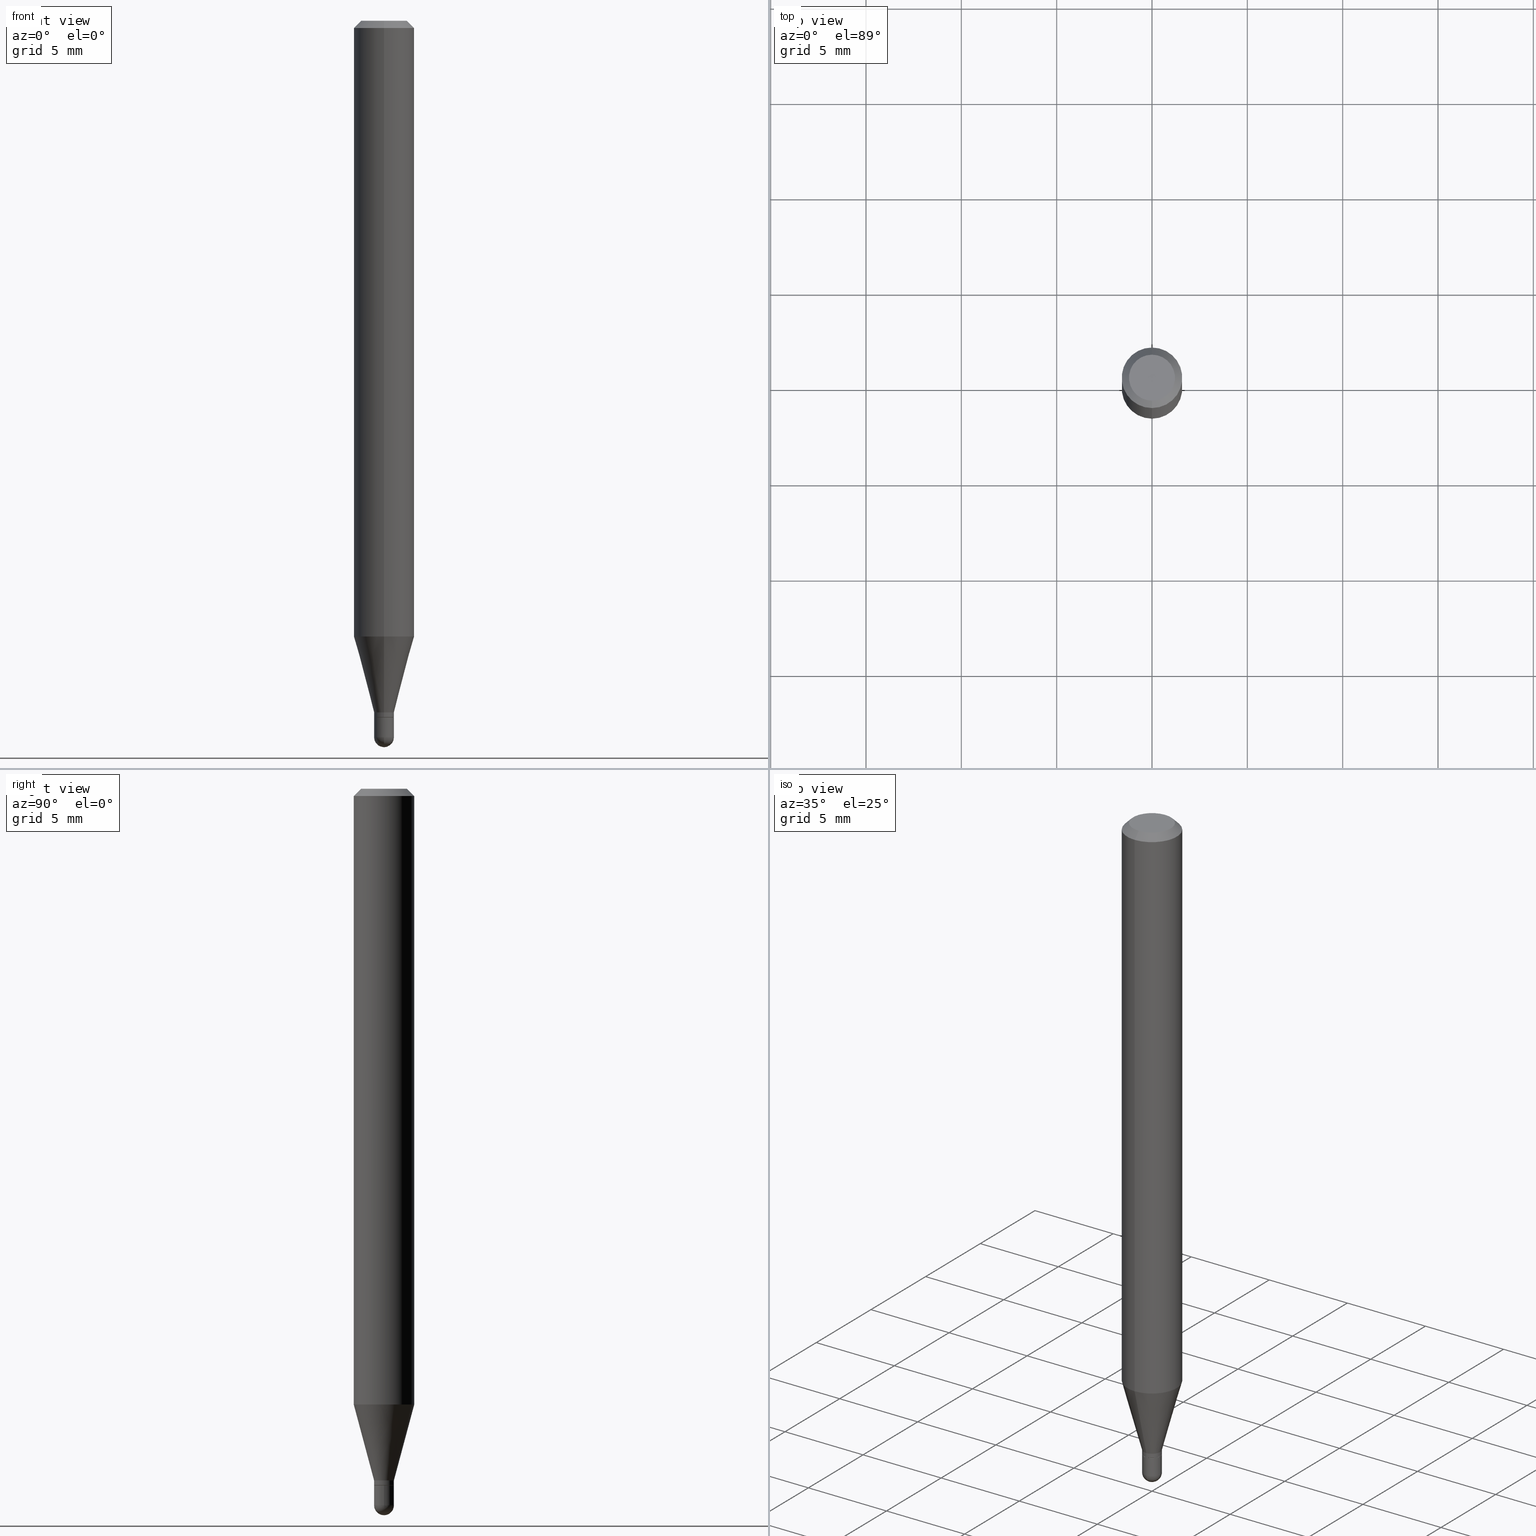
[diagram: canonical four-view strip — front | top / right | iso, engineering-drawing reading convention]
A machine part, canonical four-view strip (front | top / right | iso — engineering-drawing reading convention). The complete STEP part file that produces these views, byte-faithful:
ISO-10303-21;
HEADER;
FILE_DESCRIPTION (( 'STEP AP203' ),
    '1' );
FILE_NAME ('02538.STEP',
    '2024-03-07T20:18:48',
    ( '' ),
    ( '' ),
    'SwSTEP 2.0',
    'SolidWorks 2023',
    '' );
FILE_SCHEMA (( 'CONFIG_CONTROL_DESIGN' ));
ENDSEC;

DATA;
#1 = CONICAL_SURFACE ( 'NONE', #314, 0.02049999999999994188, 0.2617993877991504625 ) ;
#2 = LINE ( 'NONE', #393, #85 ) ;
#3 = CARTESIAN_POINT ( 'NONE',  ( 3.491895928503127378E-29, -4.986169775435812878E-15, -1.428000000000000380 ) ) ;
#4 = FACE_OUTER_BOUND ( 'NONE', #299, .T. ) ;
#5 = DIRECTION ( 'NONE',  ( -2.445305272061013346E-29, 3.491715529016674512E-15, 1.000000000000000000 ) ) ;
#6 = APPROVAL_ROLE ( '' ) ;
#7 = ORIENTED_EDGE ( 'NONE', *, *, #81, .T. ) ;
#8 = CC_DESIGN_PERSON_AND_ORGANIZATION_ASSIGNMENT ( #408, #58, ( #465 ) ) ;
#9 = COORDINATED_UNIVERSAL_TIME_OFFSET ( 5, 0, .BEHIND. ) ;
#10 = DIRECTION ( 'NONE',  ( -2.445468806185136597E-29, 3.491481338843145583E-15, 1.000000000000000000 ) ) ;
#11 = EDGE_CURVE ( 'NONE', #254, #180, #80, .T. ) ;
#12 = EDGE_LOOP ( 'NONE', ( #67, #322, #216, #130 ) ) ;
#13 = CARTESIAN_POINT ( 'NONE',  ( -1.396592535536901609E-16, -0.02000000000000502071, -1.438000000000000167 ) ) ;
#14 = ADVANCED_FACE ( 'NONE', ( #293 ), #141, .T. ) ;
#15 = VERTEX_POINT ( 'NONE', #297 ) ;
#16 = CARTESIAN_POINT ( 'NONE',  ( 8.023922595941391550E-45, -1.145756951166352322E-30, -3.281358236789170808E-16 ) ) ;
#17 = CYLINDRICAL_SURFACE ( 'NONE', #261, 0.02049999999999999739 ) ;
#18 = EDGE_LOOP ( 'NONE', ( #56, #496, #86, #82 ) ) ;
#19 = DIRECTION ( 'NONE',  ( -2.445305272061013346E-29, 3.491715529016674512E-15, 1.000000000000000000 ) ) ;
#20 = DIRECTION ( 'NONE',  ( -2.445305272061013346E-29, 3.491715529016674512E-15, 1.000000000000000000 ) ) ;
#21 = CARTESIAN_POINT ( 'NONE',  ( -4.364351673553912750E-16, -0.06250000000000005551, -0.01500000000000011047 ) ) ;
#22 = APPROVAL_DATE_TIME ( #508, #31 ) ;
#23 = ORIENTED_EDGE ( 'NONE', *, *, #11, .F. ) ;
#24 = ORIENTED_EDGE ( 'NONE', *, *, #186, .F. ) ;
#25 = PERSON_AND_ORGANIZATION_ROLE ( 'classification_officer' ) ;
#26 = VERTEX_POINT ( 'NONE', #262 ) ;
#27 = AXIS2_PLACEMENT_3D ( 'NONE', #16, #233, #441 ) ;
#28 = CONICAL_SURFACE ( 'NONE', #140, 0.06250000000000000000, 0.7853981633974483900 ) ;
#29 = AXIS2_PLACEMENT_3D ( 'NONE', #414, #20, #235 ) ;
#30 = DIRECTION ( 'NONE',  ( -2.445305272061013346E-29, 3.491715529016674512E-15, 1.000000000000000000 ) ) ;
#31 = APPROVAL ( #38, 'UNSPECIFIED' ) ;
#32 = ORIENTED_EDGE ( 'NONE', *, *, #253, .F. ) ;
#33 = LINE ( 'NONE', #388, #453 ) ;
#34 = PERSON_AND_ORGANIZATION ( #145, #359 ) ;
#35 = EDGE_CURVE ( 'NONE', #440, #254, #228, .T. ) ;
#36 = FACE_OUTER_BOUND ( 'NONE', #358, .T. ) ;
#37 = DIRECTION ( 'NONE',  ( 1.000000000000000000, -6.982962677686264344E-15, 0.000000000000000000 ) ) ;
#38 = APPROVAL_STATUS ( 'not_yet_approved' ) ;
#39 = CARTESIAN_POINT ( 'NONE',  ( -4.287811248607203282E-16, -0.06250000000000005551, -0.01500000000000011047 ) ) ;
#40 = DIRECTION ( 'NONE',  ( -6.982962677686265922E-15, -1.000000000000000000, 3.483106191921935554E-15 ) ) ;
#41 = DIRECTION ( 'NONE',  ( -2.445305272061013346E-29, 3.491715529016674512E-15, 1.000000000000000000 ) ) ;
#42 = APPLICATION_PROTOCOL_DEFINITION ( 'international standard', 'config_control_design', 1994, #354 ) ;
#43 = VECTOR ( 'NONE', #243, 39.37007874015748854 ) ;
#44 = AXIS2_PLACEMENT_3D ( 'NONE', #390, #157, #495 ) ;
#45 = CARTESIAN_POINT ( 'NONE',  ( 3.516584143294226659E-29, -5.020750165256443057E-15, -1.438000000000000167 ) ) ;
#46 =( LENGTH_UNIT ( ) NAMED_UNIT ( * ) SI_UNIT ( $, .METRE. ) );
#47 = APPROVAL ( #181, 'UNSPECIFIED' ) ;
#48 =( CONVERSION_BASED_UNIT ( 'INCH', #174 ) LENGTH_UNIT ( ) NAMED_UNIT ( #310 ) );
#49 = AXIS2_PLACEMENT_3D ( 'NONE', #309, #307, #194 ) ;
#50 = CARTESIAN_POINT ( 'NONE',  ( 3.516584143294226659E-29, -5.020750165256443057E-15, -1.438000000000000167 ) ) ;
#51 = EDGE_CURVE ( 'NONE', #99, #302, #400, .T. ) ;
#52 = ORIENTED_EDGE ( 'NONE', *, *, #321, .T. ) ;
#53 = EDGE_CURVE ( 'NONE', #26, #144, #411, .T. ) ;
#54 = ORIENTED_EDGE ( 'NONE', *, *, #206, .F. ) ;
#55 = DIRECTION ( 'NONE',  ( -1.000000000000000000, 6.982962677686265922E-15, -4.883557194083112340E-29 ) ) ;
#56 = ORIENTED_EDGE ( 'NONE', *, *, #113, .T. ) ;
#57 = DIRECTION ( 'NONE',  ( -6.982962677686265922E-15, -1.000000000000000000, 3.483106191921935554E-15 ) ) ;
#58 = PERSON_AND_ORGANIZATION_ROLE ( 'design_supplier' ) ;
#59 = VECTOR ( 'NONE', #367, 39.37007874015748143 ) ;
#60 = VERTEX_POINT ( 'NONE', #183 ) ;
#61 = ORIENTED_EDGE ( 'NONE', *, *, #372, .F. ) ;
#62 = PERSON_AND_ORGANIZATION ( #145, #359 ) ;
#63 = EDGE_CURVE ( 'NONE', #15, #440, #329, .T. ) ;
#64 = CARTESIAN_POINT ( 'NONE',  ( 3.667957908091600190E-31, -5.237573293525126621E-17, -0.01500000000000032904 ) ) ;
#65 = CARTESIAN_POINT ( 'NONE',  ( 1.456612608308200265E-16, 0.02049999999999993494, -7.158016834484159694E-17 ) ) ;
#66 = EDGE_CURVE ( 'NONE', #96, #440, #439, .T. ) ;
#67 = ORIENTED_EDGE ( 'NONE', *, *, #63, .F. ) ;
#68 = CARTESIAN_POINT ( 'NONE',  ( 3.667957908091600190E-31, -5.237573293525126621E-17, -0.01500000000000032904 ) ) ;
#69 = CIRCLE ( 'NONE', #451, 0.02049999999999999392 ) ;
#70 = ORIENTED_EDGE ( 'NONE', *, *, #206, .T. ) ;
#71 = DIRECTION ( 'NONE',  ( -6.982962677686266711E-15, -1.000000000000000000, 0.000000000000000000 ) ) ;
#72 = VECTOR ( 'NONE', #119, 39.37007874015748143 ) ;
#73 = CARTESIAN_POINT ( 'NONE',  ( 4.440892098500933817E-16, 0.06249999999999554523, -1.271253866082108219 ) ) ;
#74 = DIRECTION ( 'NONE',  ( -2.445305272061013346E-29, 3.491715529016674512E-15, 1.000000000000000000 ) ) ;
#75 = DIRECTION ( 'NONE',  ( -6.982962677686265133E-15, -1.000000000000000000, 0.000000000000000000 ) ) ;
#76 = DIRECTION ( 'NONE',  ( 1.000000000000000000, 0.000000000000000000, 0.000000000000000000 ) ) ;
#77 = PRODUCT_RELATED_PRODUCT_CATEGORY ( 'detail', '', ( #467 ) ) ;
#78 = AXIS2_PLACEMENT_3D ( 'NONE', #320, #435, #247 ) ;
#79 = DIRECTION ( 'NONE',  ( 2.445305272061012785E-29, -3.491715529016674906E-15, -1.000000000000000000 ) ) ;
#80 = CIRCLE ( 'NONE', #343, 0.06250000000000000000 ) ;
#81 = EDGE_CURVE ( 'NONE', #219, #60, #149, .T. ) ;
#82 = ORIENTED_EDGE ( 'NONE', *, *, #473, .F. ) ;
#83 = DIRECTION ( 'NONE',  ( -2.445468806185136597E-29, 3.491481338843145583E-15, 1.000000000000000000 ) ) ;
#84 = ORIENTED_EDGE ( 'NONE', *, *, #182, .T. ) ;
#85 = VECTOR ( 'NONE', #270, 39.37007874015748143 ) ;
#86 = ORIENTED_EDGE ( 'NONE', *, *, #81, .F. ) ;
#87 = CIRCLE ( 'NONE', #375, 0.02050000000000000086 ) ;
#88 = CIRCLE ( 'NONE', #492, 0.02000000000000000042 ) ;
#89 = ADVANCED_FACE ( 'NONE', ( #212 ), #334, .T. ) ;
#90 = ORIENTED_EDGE ( 'NONE', *, *, #289, .F. ) ;
#91 = FACE_OUTER_BOUND ( 'NONE', #479, .T. ) ;
#92 = EDGE_LOOP ( 'NONE', ( #287, #153 ) ) ;
#93 = DIRECTION ( 'NONE',  ( 1.000000000000000000, -6.982962677686264344E-15, 0.000000000000000000 ) ) ;
#94 = CIRCLE ( 'NONE', #327, 0.06250000000000000000 ) ;
#95 = ADVANCED_FACE ( 'NONE', ( #36 ), #282, .T. ) ;
#96 = VERTEX_POINT ( 'NONE', #421 ) ;
#97 = DATE_TIME_ROLE ( 'creation_date' ) ;
#98 = AXIS2_PLACEMENT_3D ( 'NONE', #201, #79, #349 ) ;
#99 = VERTEX_POINT ( 'NONE', #115 ) ;
#100 = CONICAL_SURFACE ( 'NONE', #370, 0.02000000000000000042, 0.7853981633974739252 ) ;
#101 = EDGE_CURVE ( 'NONE', #302, #180, #474, .T. ) ;
#102 = DIRECTION ( 'NONE',  ( -2.445305272061013346E-29, 3.491715529016674512E-15, 1.000000000000000000 ) ) ;
#103 = ADVANCED_FACE ( 'NONE', ( #4 ), #305, .T. ) ;
#104 = EDGE_LOOP ( 'NONE', ( #379, #84, #191, #23 ) ) ;
#105 = ORIENTED_EDGE ( 'NONE', *, *, #332, .F. ) ;
#106 = DIRECTION ( 'NONE',  ( -2.445468806185136597E-29, 3.491481338843145583E-15, 1.000000000000000000 ) ) ;
#107 = DIRECTION ( 'NONE',  ( -6.982962677686265922E-15, -1.000000000000000000, 3.491715529016674512E-15 ) ) ;
#108 = EDGE_LOOP ( 'NONE', ( #333, #146 ) ) ;
#109 = DIRECTION ( 'NONE',  ( 1.000000000000000000, -7.105427357601001070E-15, 4.926315508542082329E-29 ) ) ;
#110 = DIRECTION ( 'NONE',  ( 1.000000000000000000, -6.982962677686267499E-15, 4.876176775795935232E-29 ) ) ;
#111 = CARTESIAN_POINT ( 'NONE',  ( 4.364351673553919652E-16, 0.06249999999999995143, -0.01500000000000054588 ) ) ;
#112 = COORDINATED_UNIVERSAL_TIME_OFFSET ( 5, 0, .BEHIND. ) ;
#113 = EDGE_CURVE ( 'NONE', #144, #26, #88, .T. ) ;
#114 = CARTESIAN_POINT ( 'NONE',  ( 3.618071098750910124E-29, -5.165646640818434953E-15, -1.479500000000000259 ) ) ;
#115 = CARTESIAN_POINT ( 'NONE',  ( 3.840629472727447874E-16, 0.04749999999999999362, -4.939923113072091241E-16 ) ) ;
#116 = LINE ( 'NONE', #427, #72 ) ;
#117 = CARTESIAN_POINT ( 'NONE',  ( 3.491895928503127378E-29, -4.986169775435812878E-15, -1.428000000000000380 ) ) ;
#118 = FACE_OUTER_BOUND ( 'NONE', #306, .T. ) ;
#119 = DIRECTION ( 'NONE',  ( -4.937700262164674260E-15, -0.7071067811865632269, 0.7071067811865319186 ) ) ;
#120 = CARTESIAN_POINT ( 'NONE',  ( 3.618071098750910124E-29, -5.165646640818434953E-15, -1.479500000000000259 ) ) ;
#121 = AXIS2_PLACEMENT_3D ( 'NONE', #457, #391, #353 ) ;
#122 = DATE_AND_TIME ( #475, #288 ) ;
#123 = ADVANCED_FACE ( 'NONE', ( #506 ), #276, .F. ) ;
#124 = EDGE_LOOP ( 'NONE', ( #187, #269, #454, #361 ) ) ;
#125 = ADVANCED_BREP_SHAPE_REPRESENTATION ( '02538', ( #409, #250, #159 ), #300 ) ;
#126 = ORIENTED_EDGE ( 'NONE', *, *, #374, .T. ) ;
#127 = LINE ( 'NONE', #450, #177 ) ;
#128 = SECURITY_CLASSIFICATION_LEVEL ( 'unclassified' ) ;
#129 = CC_DESIGN_APPROVAL ( #47, ( #465 ) ) ;
#130 = ORIENTED_EDGE ( 'NONE', *, *, #182, .F. ) ;
#131 = VECTOR ( 'NONE', #377, 39.37007874015748143 ) ;
#132 = DIRECTION ( 'NONE',  ( -6.982962677686265922E-15, -1.000000000000000000, 4.370956789862821150E-15 ) ) ;
#133 = CARTESIAN_POINT ( 'NONE',  ( 3.616318007858092069E-29, -5.168157166756686411E-15, -1.479500000000000259 ) ) ;
#134 = ORIENTED_EDGE ( 'NONE', *, *, #113, .F. ) ;
#135 = DIRECTION ( 'NONE',  ( -2.445468806185136597E-29, 3.491481338843145583E-15, 1.000000000000000000 ) ) ;
#136 = ADVANCED_FACE ( 'NONE', ( #510 ), #100, .T. ) ;
#137 = CALENDAR_DATE ( 2024, 7, 3 ) ;
#138 = VERTEX_POINT ( 'NONE', #316 ) ;
#139 = ADVANCED_FACE ( 'NONE', ( #118 ), #436, .T. ) ;
#140 = AXIS2_PLACEMENT_3D ( 'NONE', #64, #204, #257 ) ;
#141 = CYLINDRICAL_SURFACE ( 'NONE', #417, 0.02049999999999993494 ) ;
#142 = DIRECTION ( 'NONE',  ( 1.839019923739601499E-15, 0.2588190451025251249, 0.9659258262890670910 ) ) ;
#143 = EDGE_LOOP ( 'NONE', ( #7, #331, #32, #105 ) ) ;
#144 = VERTEX_POINT ( 'NONE', #13 ) ;
#145 = PERSON ( 'UNSPECIFIED', 'UNSPECIFIED', 'UNSPECIFIED', ('UNSPECIFIED'), ('UNSPECIFIED'), ('UNSPECIFIED') ) ;
#146 = ORIENTED_EDGE ( 'NONE', *, *, #298, .T. ) ;
#147 = APPROVAL_PERSON_ORGANIZATION ( #318, #31, #199 ) ;
#148 = LINE ( 'NONE', #111, #512 ) ;
#149 = CIRCLE ( 'NONE', #433, 0.02049999999999992453 ) ;
#150 = ORIENTED_EDGE ( 'NONE', *, *, #53, .F. ) ;
#151 = CARTESIAN_POINT ( 'NONE',  ( -1.431507348925679765E-16, -0.02049999999999993494, 7.158016834484159694E-17 ) ) ;
#152 = DIRECTION ( 'NONE',  ( 1.000000000000000000, -6.982962677686266711E-15, 4.883557194083113462E-29 ) ) ;
#153 = ORIENTED_EDGE ( 'NONE', *, *, #186, .T. ) ;
#154 = ADVANCED_FACE ( 'NONE', ( #325 ), #280, .T. ) ;
#155 = DIRECTION ( 'NONE',  ( -2.445305272061013346E-29, 3.491715529016674512E-15, 1.000000000000000000 ) ) ;
#156 =( NAMED_UNIT ( * ) SI_UNIT ( $, .STERADIAN. ) SOLID_ANGLE_UNIT ( ) );
#157 = DIRECTION ( 'NONE',  ( -2.445305272061012785E-29, 3.491715529016674906E-15, 1.000000000000000000 ) ) ;
#158 = MECHANICAL_CONTEXT ( 'NONE', #448, 'mechanical' ) ;
#159 = AXIS2_PLACEMENT_3D ( 'NONE', #203, #313, #76 ) ;
#160 = AXIS2_PLACEMENT_3D ( 'NONE', #50, #10, #168 ) ;
#161 = VECTOR ( 'NONE', #142, 39.37007874015748854 ) ;
#162 = DIRECTION ( 'NONE',  ( -6.982962677686265922E-15, -1.000000000000000000, 0.000000000000000000 ) ) ;
#163 = FACE_OUTER_BOUND ( 'NONE', #418, .T. ) ;
#164 = EDGE_CURVE ( 'NONE', #256, #268, #69, .T. ) ;
#165 = DIRECTION ( 'NONE',  ( 7.105427357601000281E-15, 1.000000000000000000, 0.000000000000000000 ) ) ;
#166 = DIRECTION ( 'NONE',  ( -2.445305272061013346E-29, 3.491715529016674512E-15, 1.000000000000000000 ) ) ;
#167 = DIRECTION ( 'NONE',  ( -6.982962677686266711E-15, -1.000000000000000000, 0.000000000000000000 ) ) ;
#168 = DIRECTION ( 'NONE',  ( 1.000000000000000000, -6.982962677686261977E-15, 0.000000000000000000 ) ) ;
#169 = EDGE_CURVE ( 'NONE', #26, #60, #127, .T. ) ;
#170 = ORIENTED_EDGE ( 'NONE', *, *, #425, .T. ) ;
#171 = CC_DESIGN_SECURITY_CLASSIFICATION ( #255, ( #465 ) ) ;
#172 = AXIS2_PLACEMENT_3D ( 'NONE', #376, #30, #190 ) ;
#173 = ORIENTED_EDGE ( 'NONE', *, *, #66, .T. ) ;
#174 = LENGTH_MEASURE_WITH_UNIT ( LENGTH_MEASURE( 0.02539999999999999897 ), #46 );
#175 = ORIENTED_EDGE ( 'NONE', *, *, #164, .F. ) ;
#176 = COORDINATED_UNIVERSAL_TIME_OFFSET ( 5, 0, .BEHIND. ) ;
#177 = VECTOR ( 'NONE', #407, 39.37007874015748143 ) ;
#178 = PERSON_AND_ORGANIZATION ( #145, #359 ) ;
#179 = AXIS2_PLACEMENT_3D ( 'NONE', #507, #106, #37 ) ;
#180 = VERTEX_POINT ( 'NONE', #21 ) ;
#181 = APPROVAL_STATUS ( 'not_yet_approved' ) ;
#182 = EDGE_CURVE ( 'NONE', #440, #96, #437, .T. ) ;
#183 = CARTESIAN_POINT ( 'NONE',  ( 1.456612608308546131E-16, 0.02049999999999483832, -1.437500000000000222 ) ) ;
#184 = DIRECTION ( 'NONE',  ( -6.982962677686265133E-15, -1.000000000000000000, 0.000000000000000000 ) ) ;
#185 = PERSON_AND_ORGANIZATION ( #145, #359 ) ;
#186 = EDGE_CURVE ( 'NONE', #302, #99, #445, .T. ) ;
#187 = ORIENTED_EDGE ( 'NONE', *, *, #253, .T. ) ;
#188 = AXIS2_PLACEMENT_3D ( 'NONE', #117, #429, #184 ) ;
#189 = AXIS2_PLACEMENT_3D ( 'NONE', #213, #207, #110 ) ;
#190 = DIRECTION ( 'NONE',  ( -6.982962677686265922E-15, -1.000000000000000000, 0.000000000000000000 ) ) ;
#191 = ORIENTED_EDGE ( 'NONE', *, *, #395, .T. ) ;
#192 = DIRECTION ( 'NONE',  ( -2.445468806185136877E-29, 3.491481338843145188E-15, 1.000000000000000000 ) ) ;
#193 = CARTESIAN_POINT ( 'NONE',  ( -1.431507348925326503E-16, -0.02050000000000521891, -1.479500000000000259 ) ) ;
#194 = DIRECTION ( 'NONE',  ( -6.982962677686265133E-15, -1.000000000000000000, 0.000000000000000000 ) ) ;
#195 = APPROVAL ( #251, 'UNSPECIFIED' ) ;
#196 = CIRCLE ( 'NONE', #188, 0.02049999999999994188 ) ;
#197 = CARTESIAN_POINT ( 'NONE',  ( 3.516348981223737506E-29, -5.021086930725977911E-15, -1.438000000000000167 ) ) ;
#198 = CYLINDRICAL_SURFACE ( 'NONE', #447, 0.06250000000000000000 ) ;
#199 = APPROVAL_ROLE ( '' ) ;
#200 = ADVANCED_FACE ( 'NONE', ( #91 ), #28, .T. ) ;
#201 = CARTESIAN_POINT ( 'NONE',  ( 3.316907271900976096E-16, 0.04749999999999999362, -3.299243994677505097E-16 ) ) ;
#202 = FACE_OUTER_BOUND ( 'NONE', #104, .T. ) ;
#203 = CARTESIAN_POINT ( 'NONE',  ( 0.000000000000000000, 0.000000000000000000, 0.000000000000000000 ) ) ;
#204 = DIRECTION ( 'NONE',  ( 2.445305272061013346E-29, -3.491715529016674512E-15, -1.000000000000000000 ) ) ;
#205 = DIRECTION ( 'NONE',  ( -2.445468806185136597E-29, 3.491481338843145583E-15, 1.000000000000000000 ) ) ;
#206 = EDGE_CURVE ( 'NONE', #301, #324, #267, .T. ) ;
#207 = DIRECTION ( 'NONE',  ( -2.445468806185136597E-29, 3.491481338843145583E-15, 1.000000000000000000 ) ) ;
#208 = PLANE ( 'NONE',  #121 ) ;
#209 = CIRCLE ( 'NONE', #160, 0.02050000000000000086 ) ;
#210 = DIRECTION ( 'NONE',  ( -6.982962677686267499E-15, -1.000000000000000000, 0.000000000000000000 ) ) ;
#211 = VECTOR ( 'NONE', #355, 39.37007874015748143 ) ;
#212 = FACE_OUTER_BOUND ( 'NONE', #369, .T. ) ;
#213 = CARTESIAN_POINT ( 'NONE',  ( 0.000000000000000000, 0.000000000000000000, 0.000000000000000000 ) ) ;
#214 = DIRECTION ( 'NONE',  ( 1.000000000000000000, -6.982962677686261977E-15, 0.000000000000000000 ) ) ;
#215 = APPROVAL_DATE_TIME ( #122, #195 ) ;
#216 = ORIENTED_EDGE ( 'NONE', *, *, #446, .T. ) ;
#217 = DIRECTION ( 'NONE',  ( -6.982962677686265133E-15, -1.000000000000000000, 3.491715529016674512E-15 ) ) ;
#218 = CIRCLE ( 'NONE', #275, 0.02049999999999994188 ) ;
#219 = VERTEX_POINT ( 'NONE', #350 ) ;
#220 = PERSON_AND_ORGANIZATION ( #145, #359 ) ;
#221 = ORIENTED_EDGE ( 'NONE', *, *, #35, .T. ) ;
#222 = CALENDAR_DATE ( 2024, 7, 3 ) ;
#223 = VECTOR ( 'NONE', #192, 39.37007874015748143 ) ;
#224 = PRODUCT_DEFINITION ( 'UNKNOWN', '', #465, #398 ) ;
#225 = ORIENTED_EDGE ( 'NONE', *, *, #368, .F. ) ;
#226 = DIRECTION ( 'NONE',  ( -6.982962677686265133E-15, -1.000000000000000000, 0.000000000000000000 ) ) ;
#227 = LOCAL_TIME ( 15, 18, 48.00000000000000000, #412 ) ;
#228 = LINE ( 'NONE', #416, #59 ) ;
#229 = CLOSED_SHELL ( 'NONE', ( #95, #392, #464, #154, #230 ) ) ;
#230 = ADVANCED_FACE ( 'NONE', ( #362 ), #17, .T. ) ;
#231 = ORIENTED_EDGE ( 'NONE', *, *, #477, .F. ) ;
#232 = DIRECTION ( 'NONE',  ( -2.445305272061013346E-29, 3.491715529016674512E-15, 1.000000000000000000 ) ) ;
#233 = DIRECTION ( 'NONE',  ( -2.445305272061013346E-29, 3.491715529016674512E-15, 1.000000000000000000 ) ) ;
#234 = LOCAL_TIME ( 15, 18, 48.00000000000000000, #176 ) ;
#235 = DIRECTION ( 'NONE',  ( -6.982962677686266711E-15, -1.000000000000000000, 3.491715529016674906E-15 ) ) ;
#236 = DIRECTION ( 'NONE',  ( -2.445305272061013346E-29, 3.491715529016674512E-15, 1.000000000000000000 ) ) ;
#237 = ADVANCED_FACE ( 'NONE', ( #311 ), #277, .T. ) ;
#238 = CARTESIAN_POINT ( 'NONE',  ( 3.616318007858092069E-29, -5.168157166756686411E-15, -1.479500000000000259 ) ) ;
#239 = LOCAL_TIME ( 15, 18, 48.00000000000000000, #112 ) ;
#240 = FACE_OUTER_BOUND ( 'NONE', #420, .T. ) ;
#241 = ADVANCED_FACE ( 'NONE', ( #279 ), #1, .T. ) ;
#242 = DIRECTION ( 'NONE',  ( -6.982962677686265922E-15, -1.000000000000000000, 0.000000000000000000 ) ) ;
#243 = DIRECTION ( 'NONE',  ( -1.807323732225331323E-15, -0.2588190451025183525, 0.9659258262890689783 ) ) ;
#244 = CC_DESIGN_DATE_AND_TIME_ASSIGNMENT ( #363, #97, ( #224 ) ) ;
#245 = DIRECTION ( 'NONE',  ( -6.982962677686265922E-15, -1.000000000000000000, 0.000000000000000000 ) ) ;
#246 = DIRECTION ( 'NONE',  ( -6.982962677686265922E-15, -1.000000000000000000, 3.491715529016674512E-15 ) ) ;
#247 = DIRECTION ( 'NONE',  ( 1.000000000000000000, -6.982962677686264344E-15, 0.000000000000000000 ) ) ;
#248 = CIRCLE ( 'NONE', #49, 0.02049999999999992453 ) ;
#249 = CARTESIAN_POINT ( 'NONE',  ( 3.616318007858092069E-29, -5.168157166756686411E-15, -1.479500000000000259 ) ) ;
#250 = MANIFOLD_SOLID_BREP ( 'Body-Move/Copy2[2]', #278 ) ;
#251 = APPROVAL_STATUS ( 'not_yet_approved' ) ;
#252 = ORIENTED_EDGE ( 'NONE', *, *, #374, .F. ) ;
#253 = EDGE_CURVE ( 'NONE', #399, #15, #196, .T. ) ;
#254 = VERTEX_POINT ( 'NONE', #263 ) ;
#255 = SECURITY_CLASSIFICATION ( '', '', #128 ) ;
#256 = VERTEX_POINT ( 'NONE', #485 ) ;
#257 = DIRECTION ( 'NONE',  ( 6.982962677686265922E-15, 1.000000000000000000, -3.483106191921935554E-15 ) ) ;
#258 = AXIS2_PLACEMENT_3D ( 'NONE', #249, #396, #167 ) ;
#259 = ORIENTED_EDGE ( 'NONE', *, *, #405, .T. ) ;
#260 = ORIENTED_EDGE ( 'NONE', *, *, #298, .F. ) ;
#261 = AXIS2_PLACEMENT_3D ( 'NONE', #315, #482, #403 ) ;
#262 = CARTESIAN_POINT ( 'NONE',  ( 1.438849039914551500E-16, 0.01999999999999498013, -1.438000000000000167 ) ) ;
#263 = CARTESIAN_POINT ( 'NONE',  ( 4.440892098500938748E-16, 0.06249999999999995143, -0.01500000000000054588 ) ) ;
#264 = VERTEX_POINT ( 'NONE', #415 ) ;
#265 = DIRECTION ( 'NONE',  ( -2.445305272061013346E-29, 3.491715529016674906E-15, 1.000000000000000000 ) ) ;
#266 = CARTESIAN_POINT ( 'NONE',  ( 3.108603780858524762E-29, -4.438856865521379751E-15, -1.271253866082107997 ) ) ;
#267 = CIRCLE ( 'NONE', #410, 0.02050000000000011188 ) ;
#268 = VERTEX_POINT ( 'NONE', #364 ) ;
#269 = ORIENTED_EDGE ( 'NONE', *, *, #63, .T. ) ;
#270 = DIRECTION ( 'NONE',  ( -2.445468806185136877E-29, 3.491481338843145188E-15, 1.000000000000000000 ) ) ;
#271 = PERSON_AND_ORGANIZATION_ROLE ( 'creator' ) ;
#272 = FACE_OUTER_BOUND ( 'NONE', #108, .T. ) ;
#273 = EDGE_CURVE ( 'NONE', #301, #268, #341, .T. ) ;
#274 = FACE_OUTER_BOUND ( 'NONE', #340, .T. ) ;
#275 = AXIS2_PLACEMENT_3D ( 'NONE', #346, #381, #419 ) ;
#276 = PLANE ( 'NONE',  #98 ) ;
#277 = CONICAL_SURFACE ( 'NONE', #455, 0.02049999999999994188, 0.2617993877991504625 ) ;
#278 = CLOSED_SHELL ( 'NONE', ( #14, #136, #89, #413, #237, #241, #505, #200, #123, #336, #103, #139 ) ) ;
#279 = FACE_OUTER_BOUND ( 'NONE', #12, .T. ) ;
#280 = SPHERICAL_SURFACE ( 'NONE', #258, 0.02050000000000011188 ) ;
#281 = PERSON_AND_ORGANIZATION ( #145, #359 ) ;
#282 = CYLINDRICAL_SURFACE ( 'NONE', #189, 0.02049999999999999739 ) ;
#283 = SHAPE_DEFINITION_REPRESENTATION ( #385, #125 ) ;
#284 = ORIENTED_EDGE ( 'NONE', *, *, #477, .T. ) ;
#285 = UNCERTAINTY_MEASURE_WITH_UNIT (LENGTH_MEASURE( 1.000000000000000082E-05 ), #48, 'distance_accuracy_value', 'NONE');
#286 = EDGE_CURVE ( 'NONE', #264, #324, #471, .T. ) ;
#287 = ORIENTED_EDGE ( 'NONE', *, *, #51, .T. ) ;
#288 = LOCAL_TIME ( 15, 18, 48.00000000000000000, #9 ) ;
#289 = EDGE_CURVE ( 'NONE', #138, #401, #87, .T. ) ;
#290 = VECTOR ( 'NONE', #265, 39.37007874015748143 ) ;
#291 = ORIENTED_EDGE ( 'NONE', *, *, #332, .T. ) ;
#292 = CC_DESIGN_APPROVAL ( #195, ( #255 ) ) ;
#293 = FACE_OUTER_BOUND ( 'NONE', #143, .T. ) ;
#294 = AXIS2_PLACEMENT_3D ( 'NONE', #386, #109, #165 ) ;
#295 = AXIS2_PLACEMENT_3D ( 'NONE', #266, #461, #468 ) ;
#296 = COORDINATED_UNIVERSAL_TIME_OFFSET ( 5, 0, .BEHIND. ) ;
#297 = CARTESIAN_POINT ( 'NONE',  ( 2.948752353404744289E-16, 0.02049999999999495628, -1.428000000000000380 ) ) ;
#298 = EDGE_CURVE ( 'NONE', #401, #138, #209, .T. ) ;
#299 = EDGE_LOOP ( 'NONE', ( #504, #360, #380, #404 ) ) ;
#300 =( GEOMETRIC_REPRESENTATION_CONTEXT ( 3 ) GLOBAL_UNCERTAINTY_ASSIGNED_CONTEXT ( ( #285 ) ) GLOBAL_UNIT_ASSIGNED_CONTEXT ( ( #48, #460, #156 ) ) REPRESENTATION_CONTEXT ( 'NONE', 'WORKASPACE' ) );
#301 = VERTEX_POINT ( 'NONE', #323 ) ;
#302 = VERTEX_POINT ( 'NONE', #478 ) ;
#303 = DIRECTION ( 'NONE',  ( 1.000000000000000000, -6.982962677686264344E-15, 0.000000000000000000 ) ) ;
#304 = CYLINDRICAL_SURFACE ( 'NONE', #351, 0.06250000000000000000 ) ;
#305 = CONICAL_SURFACE ( 'NONE', #491, 0.02000000000000000042, 0.7853981633974739252 ) ;
#306 = EDGE_LOOP ( 'NONE', ( #486, #170, #291, #61 ) ) ;
#307 = DIRECTION ( 'NONE',  ( -2.445305272061013346E-29, 3.491715529016674512E-15, 1.000000000000000000 ) ) ;
#308 = ORIENTED_EDGE ( 'NONE', *, *, #428, .F. ) ;
#309 = CARTESIAN_POINT ( 'NONE',  ( 3.515126328587707140E-29, -5.019341072961470449E-15, -1.437500000000000222 ) ) ;
#310 = DIMENSIONAL_EXPONENTS ( 1.000000000000000000, 0.000000000000000000, 0.000000000000000000, 0.000000000000000000, 0.000000000000000000, 0.000000000000000000, 0.000000000000000000 ) ;
#311 = FACE_OUTER_BOUND ( 'NONE', #124, .T. ) ;
#312 = CARTESIAN_POINT ( 'NONE',  ( -1.431507348925331187E-16, -0.02050000000000492748, -1.428000000000000380 ) ) ;
#313 = DIRECTION ( 'NONE',  ( 0.000000000000000000, 0.000000000000000000, 1.000000000000000000 ) ) ;
#314 = AXIS2_PLACEMENT_3D ( 'NONE', #366, #19, #466 ) ;
#315 = CARTESIAN_POINT ( 'NONE',  ( 0.000000000000000000, 0.000000000000000000, 0.000000000000000000 ) ) ;
#316 = CARTESIAN_POINT ( 'NONE',  ( 0.02050000000000000086, -5.163900900149011871E-15, -1.438000000000000167 ) ) ;
#317 = LINE ( 'NONE', #312, #43 ) ;
#318 = PERSON_AND_ORGANIZATION ( #145, #359 ) ;
#319 = DIRECTION ( 'NONE',  ( 2.445305272061013346E-29, -3.491715529016674512E-15, -1.000000000000000000 ) ) ;
#320 = CARTESIAN_POINT ( 'NONE',  ( 3.618071098750910124E-29, -5.165646640818434953E-15, -1.479500000000000259 ) ) ;
#321 = EDGE_CURVE ( 'NONE', #324, #256, #438, .T. ) ;
#322 = ORIENTED_EDGE ( 'NONE', *, *, #372, .T. ) ;
#323 = CARTESIAN_POINT ( 'NONE',  ( 3.665573572938478934E-29, -5.240987797172098125E-15, -1.500000000000000444 ) ) ;
#324 = VERTEX_POINT ( 'NONE', #193 ) ;
#325 = FACE_OUTER_BOUND ( 'NONE', #494, .T. ) ;
#326 = ORIENTED_EDGE ( 'NONE', *, *, #405, .F. ) ;
#327 = AXIS2_PLACEMENT_3D ( 'NONE', #68, #236, #40 ) ;
#328 = DATE_AND_TIME ( #222, #227 ) ;
#329 = LINE ( 'NONE', #493, #161 ) ;
#330 = CC_DESIGN_DATE_AND_TIME_ASSIGNMENT ( #430, #356, ( #255 ) ) ;
#331 = ORIENTED_EDGE ( 'NONE', *, *, #335, .T. ) ;
#332 = EDGE_CURVE ( 'NONE', #219, #399, #501, .T. ) ;
#333 = ORIENTED_EDGE ( 'NONE', *, *, #289, .T. ) ;
#334 = CONICAL_SURFACE ( 'NONE', #484, 0.06250000000000000000, 0.7853981633974483900 ) ;
#335 = EDGE_CURVE ( 'NONE', #60, #15, #348, .T. ) ;
#336 = ADVANCED_FACE ( 'NONE', ( #274 ), #344, .F. ) ;
#337 = ORIENTED_EDGE ( 'NONE', *, *, #368, .T. ) ;
#338 = CARTESIAN_POINT ( 'NONE',  ( -0.02050000000000000086, -4.947537142206618732E-15, -1.438000000000000167 ) ) ;
#339 = ORIENTED_EDGE ( 'NONE', *, *, #101, .F. ) ;
#340 = EDGE_LOOP ( 'NONE', ( #134, #150 ) ) ;
#341 = CIRCLE ( 'NONE', #294, 0.02050000000000011188 ) ;
#342 = LINE ( 'NONE', #423, #223 ) ;
#343 = AXIS2_PLACEMENT_3D ( 'NONE', #378, #232, #57 ) ;
#344 = PLANE ( 'NONE',  #44 ) ;
#345 = DIRECTION ( 'NONE',  ( -2.445305272061013346E-29, 3.491715529016674512E-15, 1.000000000000000000 ) ) ;
#346 = CARTESIAN_POINT ( 'NONE',  ( 3.491895928503127378E-29, -4.986169775435812878E-15, -1.428000000000000380 ) ) ;
#347 = CALENDAR_DATE ( 2024, 7, 3 ) ;
#348 = LINE ( 'NONE', #65, #131 ) ;
#349 = DIRECTION ( 'NONE',  ( 6.982962677686265922E-15, 1.000000000000000000, -3.491715529016674906E-15 ) ) ;
#350 = CARTESIAN_POINT ( 'NONE',  ( -1.431507348925332666E-16, -0.02050000000000501421, -1.437500000000000222 ) ) ;
#351 = AXIS2_PLACEMENT_3D ( 'NONE', #511, #74, #246 ) ;
#352 = DIRECTION ( 'NONE',  ( -2.445305272061013346E-29, 3.491715529016674512E-15, 1.000000000000000000 ) ) ;
#353 = DIRECTION ( 'NONE',  ( -1.000000000000000000, 6.982962677686265922E-15, -4.876176775795935793E-29 ) ) ;
#354 = APPLICATION_CONTEXT ( 'configuration controlled 3d designs of mechanical parts and assemblies' ) ;
#355 = DIRECTION ( 'NONE',  ( -4.851104656540964275E-15, -0.7071067811865500152, -0.7071067811865450192 ) ) ;
#356 = DATE_TIME_ROLE ( 'classification_date' ) ;
#357 = ORIENTED_EDGE ( 'NONE', *, *, #51, .F. ) ;
#358 = EDGE_LOOP ( 'NONE', ( #259, #337, #90, #252, #406 ) ) ;
#359 = ORGANIZATION ( 'UNSPECIFIED', 'UNSPECIFIED', '' ) ;
#360 = ORIENTED_EDGE ( 'NONE', *, *, #53, .T. ) ;
#361 = ORIENTED_EDGE ( 'NONE', *, *, #446, .F. ) ;
#362 = FACE_OUTER_BOUND ( 'NONE', #490, .T. ) ;
#363 = DATE_AND_TIME ( #137, #234 ) ;
#364 = CARTESIAN_POINT ( 'NONE',  ( 1.456612608308570783E-16, 0.02049999999999488690, -1.479500000000000259 ) ) ;
#365 = CARTESIAN_POINT ( 'NONE',  ( 0.000000000000000000, 0.000000000000000000, 0.000000000000000000 ) ) ;
#366 = CARTESIAN_POINT ( 'NONE',  ( 3.491895928503127378E-29, -4.986169775435812878E-15, -1.428000000000000380 ) ) ;
#367 = DIRECTION ( 'NONE',  ( -2.445305272061013346E-29, 3.491715529016674906E-15, 1.000000000000000000 ) ) ;
#368 = EDGE_CURVE ( 'NONE', #264, #401, #342, .T. ) ;
#369 = EDGE_LOOP ( 'NONE', ( #24, #499, #284, #308 ) ) ;
#370 = AXIS2_PLACEMENT_3D ( 'NONE', #470, #352, #162 ) ;
#371 = APPROVAL_DATE_TIME ( #328, #47 ) ;
#372 = EDGE_CURVE ( 'NONE', #15, #399, #218, .T. ) ;
#373 = CIRCLE ( 'NONE', #179, 0.02049999999999999392 ) ;
#374 = EDGE_CURVE ( 'NONE', #256, #138, #2, .T. ) ;
#375 = AXIS2_PLACEMENT_3D ( 'NONE', #45, #83, #214 ) ;
#376 = CARTESIAN_POINT ( 'NONE',  ( 3.516348981223737506E-29, -5.021086930725977911E-15, -1.438000000000000167 ) ) ;
#377 = DIRECTION ( 'NONE',  ( -2.445305272061013346E-29, 3.491715529016674906E-15, 1.000000000000000000 ) ) ;
#378 = CARTESIAN_POINT ( 'NONE',  ( 3.667957908091600190E-31, -5.237573293525126621E-17, -0.01500000000000032904 ) ) ;
#379 = ORIENTED_EDGE ( 'NONE', *, *, #35, .F. ) ;
#380 = ORIENTED_EDGE ( 'NONE', *, *, #473, .T. ) ;
#381 = DIRECTION ( 'NONE',  ( -2.445305272061013346E-29, 3.491715529016674512E-15, 1.000000000000000000 ) ) ;
#382 = AXIS2_PLACEMENT_3D ( 'NONE', #402, #444, #132 ) ;
#383 = APPLICATION_PROTOCOL_DEFINITION ( 'international standard', 'config_control_design', 1994, #448 ) ;
#384 = APPROVAL_PERSON_ORGANIZATION ( #220, #47, #480 ) ;
#385 = PRODUCT_DEFINITION_SHAPE ( 'NONE', 'NONE',  #224 ) ;
#386 = CARTESIAN_POINT ( 'NONE',  ( 3.616318007858092069E-29, -5.168157166756686411E-15, -1.479500000000000259 ) ) ;
#387 = CARTESIAN_POINT ( 'NONE',  ( 3.516348981223737506E-29, -5.021086930725977911E-15, -1.438000000000000167 ) ) ;
#388 = CARTESIAN_POINT ( 'NONE',  ( -4.364351673553916201E-16, -0.06250000000000000000, 2.182322205635421570E-16 ) ) ;
#389 = PERSON_AND_ORGANIZATION_ROLE ( 'design_owner' ) ;
#390 = CARTESIAN_POINT ( 'NONE',  ( 3.516348981223737506E-29, -5.021086930725977911E-15, -1.438000000000000167 ) ) ;
#391 = DIRECTION ( 'NONE',  ( 2.438088387897960049E-29, -3.491481338843145188E-15, -1.000000000000000000 ) ) ;
#392 = ADVANCED_FACE ( 'NONE', ( #163 ), #497, .T. ) ;
#393 = CARTESIAN_POINT ( 'NONE',  ( 0.02049999999999999739, -1.431507348925684695E-16, 9.996162390381665713E-31 ) ) ;
#394 = AXIS2_PLACEMENT_3D ( 'NONE', #238, #152, #71 ) ;
#395 = EDGE_CURVE ( 'NONE', #96, #180, #33, .T. ) ;
#396 = DIRECTION ( 'NONE',  ( 1.000000000000000000, -6.982962677686266711E-15, 4.883557194083113462E-29 ) ) ;
#397 = ORIENTED_EDGE ( 'NONE', *, *, #428, .T. ) ;
#398 = DESIGN_CONTEXT ( 'detailed design', #354, 'design' ) ;
#399 = VERTEX_POINT ( 'NONE', #463 ) ;
#400 = CIRCLE ( 'NONE', #29, 0.04749999999999999362 ) ;
#401 = VERTEX_POINT ( 'NONE', #338 ) ;
#402 = CARTESIAN_POINT ( 'NONE',  ( 3.108603780858524762E-29, -4.438856865521379751E-15, -1.271253866082107997 ) ) ;
#403 = DIRECTION ( 'NONE',  ( 1.000000000000000000, -6.982962677686267499E-15, 4.876176775795935232E-29 ) ) ;
#404 = ORIENTED_EDGE ( 'NONE', *, *, #425, .F. ) ;
#405 = EDGE_CURVE ( 'NONE', #268, #264, #373, .T. ) ;
#406 = ORIENTED_EDGE ( 'NONE', *, *, #164, .T. ) ;
#407 = DIRECTION ( 'NONE',  ( 5.024295867788190974E-15, 0.7071067811865681119, 0.7071067811865270336 ) ) ;
#408 = PERSON_AND_ORGANIZATION ( #145, #359 ) ;
#409 = MANIFOLD_SOLID_BREP ( 'Body-Move/Copy2[1]', #229 ) ;
#410 = AXIS2_PLACEMENT_3D ( 'NONE', #133, #55, #210 ) ;
#411 = CIRCLE ( 'NONE', #172, 0.02000000000000000042 ) ;
#412 = COORDINATED_UNIVERSAL_TIME_OFFSET ( 5, 0, .BEHIND. ) ;
#413 = ADVANCED_FACE ( 'NONE', ( #240 ), #198, .T. ) ;
#414 = CARTESIAN_POINT ( 'NONE',  ( 8.023922595941391550E-45, -1.145756951166352322E-30, -3.281358236789170808E-16 ) ) ;
#415 = CARTESIAN_POINT ( 'NONE',  ( -0.02049999999999999392, -4.947537142206618732E-15, -1.479500000000000259 ) ) ;
#416 = CARTESIAN_POINT ( 'NONE',  ( 4.440892098500625669E-16, 0.06250000000000000000, -2.182322205635421570E-16 ) ) ;
#417 = AXIS2_PLACEMENT_3D ( 'NONE', #452, #102, #449 ) ;
#418 = EDGE_LOOP ( 'NONE', ( #54, #488, #175, #476 ) ) ;
#419 = DIRECTION ( 'NONE',  ( -6.982962677686265133E-15, -1.000000000000000000, 0.000000000000000000 ) ) ;
#420 = EDGE_LOOP ( 'NONE', ( #173, #221, #231, #500 ) ) ;
#421 = CARTESIAN_POINT ( 'NONE',  ( -4.364351673553607559E-16, -0.06250000000000445477, -1.271253866082107775 ) ) ;
#422 = CC_DESIGN_PERSON_AND_ORGANIZATION_ASSIGNMENT ( #62, #25, ( #255 ) ) ;
#423 = CARTESIAN_POINT ( 'NONE',  ( -0.02049999999999999739, 1.456612608308205196E-16, -1.008381693502255444E-30 ) ) ;
#424 = LOCAL_TIME ( 15, 18, 48.00000000000000000, #296 ) ;
#425 = EDGE_CURVE ( 'NONE', #60, #219, #248, .T. ) ;
#426 = CARTESIAN_POINT ( 'NONE',  ( 3.515126328587707140E-29, -5.019341072961470449E-15, -1.437500000000000222 ) ) ;
#427 = CARTESIAN_POINT ( 'NONE',  ( -1.396592535536901609E-16, -0.02000000000000502071, -1.438000000000000167 ) ) ;
#428 = EDGE_CURVE ( 'NONE', #99, #254, #148, .T. ) ;
#429 = DIRECTION ( 'NONE',  ( -2.445305272061013346E-29, 3.491715529016674512E-15, 1.000000000000000000 ) ) ;
#430 = DATE_AND_TIME ( #469, #424 ) ;
#431 = CC_DESIGN_APPROVAL ( #31, ( #224 ) ) ;
#432 = AXIS2_PLACEMENT_3D ( 'NONE', #114, #205, #303 ) ;
#433 = AXIS2_PLACEMENT_3D ( 'NONE', #426, #166, #75 ) ;
#434 = ORIENTED_EDGE ( 'NONE', *, *, #11, .T. ) ;
#435 = DIRECTION ( 'NONE',  ( -2.445468806185136597E-29, 3.491481338843145583E-15, 1.000000000000000000 ) ) ;
#436 = CYLINDRICAL_SURFACE ( 'NONE', #443, 0.02049999999999993494 ) ;
#437 = CIRCLE ( 'NONE', #382, 0.06250000000000000000 ) ;
#438 = CIRCLE ( 'NONE', #432, 0.02049999999999999392 ) ;
#439 = CIRCLE ( 'NONE', #295, 0.06250000000000000000 ) ;
#440 = VERTEX_POINT ( 'NONE', #73 ) ;
#441 = DIRECTION ( 'NONE',  ( -6.982962677686266711E-15, -1.000000000000000000, 3.491715529016674906E-15 ) ) ;
#442 = DIRECTION ( 'NONE',  ( -2.445305272061013346E-29, 3.491715529016674512E-15, 1.000000000000000000 ) ) ;
#443 = AXIS2_PLACEMENT_3D ( 'NONE', #365, #5, #217 ) ;
#444 = DIRECTION ( 'NONE',  ( -2.445305272061013346E-29, 3.491715529016674512E-15, 1.000000000000000000 ) ) ;
#445 = CIRCLE ( 'NONE', #27, 0.04749999999999999362 ) ;
#446 = EDGE_CURVE ( 'NONE', #399, #96, #317, .T. ) ;
#447 = AXIS2_PLACEMENT_3D ( 'NONE', #503, #155, #107 ) ;
#448 = APPLICATION_CONTEXT ( 'configuration controlled 3d designs of mechanical parts and assemblies' ) ;
#449 = DIRECTION ( 'NONE',  ( -6.982962677686265133E-15, -1.000000000000000000, 3.491715529016674512E-15 ) ) ;
#450 = CARTESIAN_POINT ( 'NONE',  ( 1.421085471520551691E-16, 0.01999999999999498013, -1.438000000000000167 ) ) ;
#451 = AXIS2_PLACEMENT_3D ( 'NONE', #120, #135, #93 ) ;
#452 = CARTESIAN_POINT ( 'NONE',  ( 0.000000000000000000, 0.000000000000000000, 0.000000000000000000 ) ) ;
#453 = VECTOR ( 'NONE', #472, 39.37007874015748143 ) ;
#454 = ORIENTED_EDGE ( 'NONE', *, *, #66, .F. ) ;
#455 = AXIS2_PLACEMENT_3D ( 'NONE', #3, #442, #226 ) ;
#456 = ORIENTED_EDGE ( 'NONE', *, *, #286, .F. ) ;
#457 = CARTESIAN_POINT ( 'NONE',  ( 1.431507348926035985E-16, 0.02049999999999498057, -1.438000000000000167 ) ) ;
#458 = CC_DESIGN_PERSON_AND_ORGANIZATION_ASSIGNMENT ( #178, #487, ( #465 ) ) ;
#459 = DIRECTION ( 'NONE',  ( 4.937700262164548042E-15, 0.7071067811865451302, -0.7071067811865499042 ) ) ;
#460 =( NAMED_UNIT ( * ) PLANE_ANGLE_UNIT ( ) SI_UNIT ( $, .RADIAN. ) );
#461 = DIRECTION ( 'NONE',  ( -2.445305272061013346E-29, 3.491715529016674512E-15, 1.000000000000000000 ) ) ;
#462 = CARTESIAN_POINT ( 'NONE',  ( 3.667957908091600190E-31, -5.237573293525126621E-17, -0.01500000000000032904 ) ) ;
#463 = CARTESIAN_POINT ( 'NONE',  ( -1.431507348925331187E-16, -0.02050000000000492748, -1.428000000000000380 ) ) ;
#464 = ADVANCED_FACE ( 'NONE', ( #272 ), #208, .F. ) ;
#465 = PRODUCT_DEFINITION_FORMATION_WITH_SPECIFIED_SOURCE ( 'ANY', '', #467, .NOT_KNOWN. ) ;
#466 = DIRECTION ( 'NONE',  ( -6.982962677686265133E-15, -1.000000000000000000, 0.000000000000000000 ) ) ;
#467 = PRODUCT ( '02538', '02538', '', ( #158 ) ) ;
#468 = DIRECTION ( 'NONE',  ( -6.982962677686265922E-15, -1.000000000000000000, 4.370956789862821150E-15 ) ) ;
#469 = CALENDAR_DATE ( 2024, 7, 3 ) ;
#470 = CARTESIAN_POINT ( 'NONE',  ( 3.516348981223737506E-29, -5.021086930725977911E-15, -1.438000000000000167 ) ) ;
#471 = CIRCLE ( 'NONE', #78, 0.02049999999999999392 ) ;
#472 = DIRECTION ( 'NONE',  ( -2.445305272061013346E-29, 3.491715529016674906E-15, 1.000000000000000000 ) ) ;
#473 = EDGE_CURVE ( 'NONE', #144, #219, #116, .T. ) ;
#474 = LINE ( 'NONE', #39, #211 ) ;
#475 = CALENDAR_DATE ( 2024, 7, 3 ) ;
#476 = ORIENTED_EDGE ( 'NONE', *, *, #321, .F. ) ;
#477 = EDGE_CURVE ( 'NONE', #180, #254, #94, .T. ) ;
#478 = CARTESIAN_POINT ( 'NONE',  ( -3.773273898774340269E-16, -0.04749999999999999362, -1.622793360506250376E-16 ) ) ;
#479 = EDGE_LOOP ( 'NONE', ( #339, #357, #397, #434 ) ) ;
#480 = APPROVAL_ROLE ( '' ) ;
#481 = ORIENTED_EDGE ( 'NONE', *, *, #286, .T. ) ;
#482 = DIRECTION ( 'NONE',  ( -2.445468806185136597E-29, 3.491481338843145583E-15, 1.000000000000000000 ) ) ;
#483 = CC_DESIGN_PERSON_AND_ORGANIZATION_ASSIGNMENT ( #34, #389, ( #467 ) ) ;
#484 = AXIS2_PLACEMENT_3D ( 'NONE', #462, #319, #502 ) ;
#485 = CARTESIAN_POINT ( 'NONE',  ( 0.02049999999999999392, -5.236349137930007031E-15, -1.479500000000000259 ) ) ;
#486 = ORIENTED_EDGE ( 'NONE', *, *, #335, .F. ) ;
#487 = PERSON_AND_ORGANIZATION_ROLE ( 'creator' ) ;
#488 = ORIENTED_EDGE ( 'NONE', *, *, #273, .T. ) ;
#489 = ORIENTED_EDGE ( 'NONE', *, *, #273, .F. ) ;
#490 = EDGE_LOOP ( 'NONE', ( #225, #481, #52, #126, #260 ) ) ;
#491 = AXIS2_PLACEMENT_3D ( 'NONE', #387, #41, #242 ) ;
#492 = AXIS2_PLACEMENT_3D ( 'NONE', #197, #345, #245 ) ;
#493 = CARTESIAN_POINT ( 'NONE',  ( 1.456612608308550076E-16, 0.02049999999999495628, -1.428000000000000380 ) ) ;
#494 = EDGE_LOOP ( 'NONE', ( #489, #70, #456, #326 ) ) ;
#495 = DIRECTION ( 'NONE',  ( -6.982962677686265922E-15, -1.000000000000000000, 3.491715529016674906E-15 ) ) ;
#496 = ORIENTED_EDGE ( 'NONE', *, *, #169, .T. ) ;
#497 = SPHERICAL_SURFACE ( 'NONE', #394, 0.02050000000000011188 ) ;
#498 = APPROVAL_PERSON_ORGANIZATION ( #281, #195, #6 ) ;
#499 = ORIENTED_EDGE ( 'NONE', *, *, #101, .T. ) ;
#500 = ORIENTED_EDGE ( 'NONE', *, *, #395, .F. ) ;
#501 = LINE ( 'NONE', #151, #290 ) ;
#502 = DIRECTION ( 'NONE',  ( 6.982962677686265922E-15, 1.000000000000000000, -3.483106191921935554E-15 ) ) ;
#503 = CARTESIAN_POINT ( 'NONE',  ( 0.000000000000000000, 0.000000000000000000, 0.000000000000000000 ) ) ;
#504 = ORIENTED_EDGE ( 'NONE', *, *, #169, .F. ) ;
#505 = ADVANCED_FACE ( 'NONE', ( #202 ), #304, .T. ) ;
#506 = FACE_OUTER_BOUND ( 'NONE', #92, .T. ) ;
#507 = CARTESIAN_POINT ( 'NONE',  ( 3.618071098750910124E-29, -5.165646640818434953E-15, -1.479500000000000259 ) ) ;
#508 = DATE_AND_TIME ( #347, #239 ) ;
#509 = CC_DESIGN_PERSON_AND_ORGANIZATION_ASSIGNMENT ( #185, #271, ( #224 ) ) ;
#510 = FACE_OUTER_BOUND ( 'NONE', #18, .T. ) ;
#511 = CARTESIAN_POINT ( 'NONE',  ( 0.000000000000000000, 0.000000000000000000, 0.000000000000000000 ) ) ;
#512 = VECTOR ( 'NONE', #459, 39.37007874015748143 ) ;
ENDSEC;
END-ISO-10303-21;
